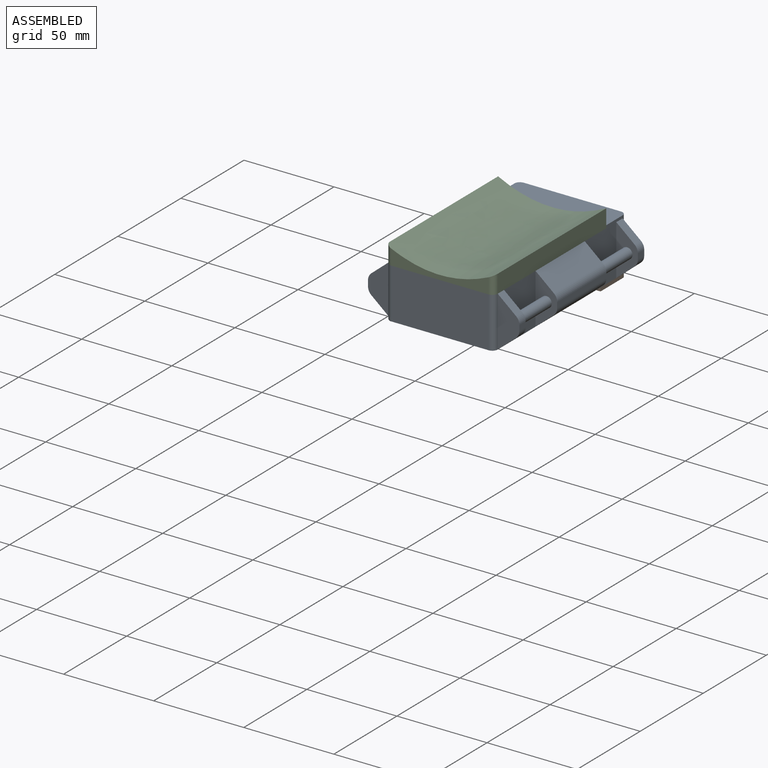
[diagram: assembled view]
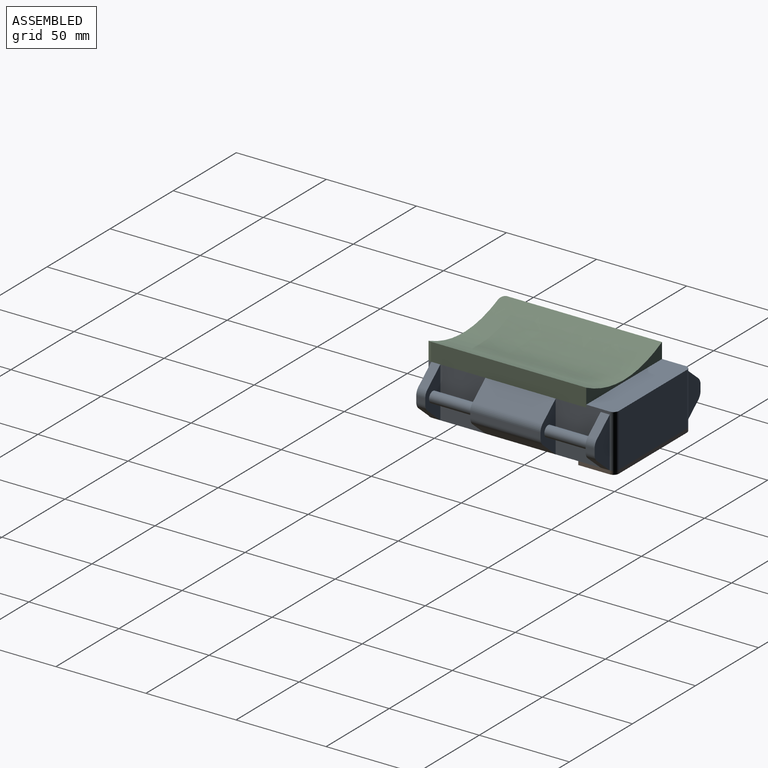
[diagram: assembled view, second angle]
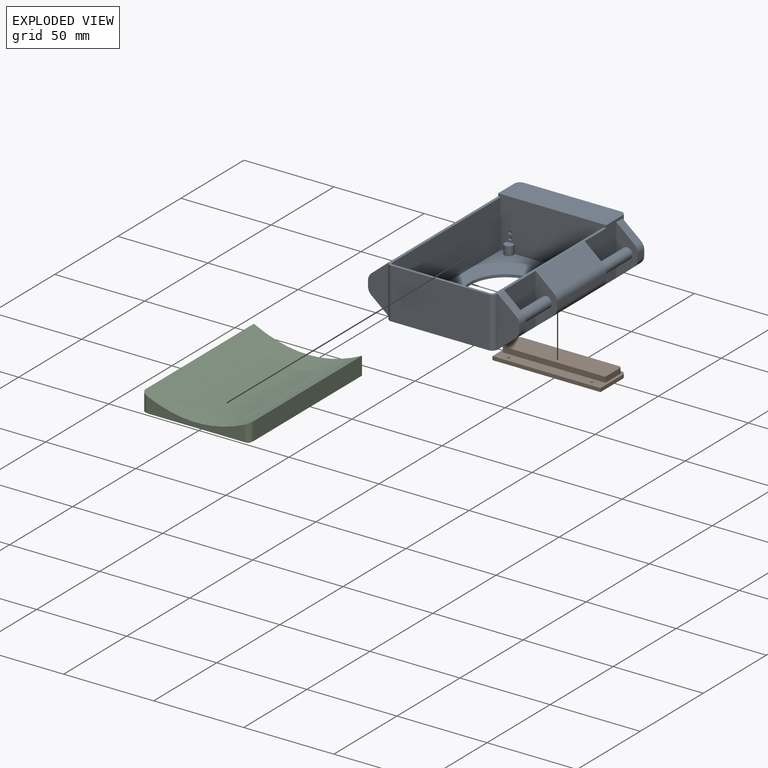
[diagram: exploded view]
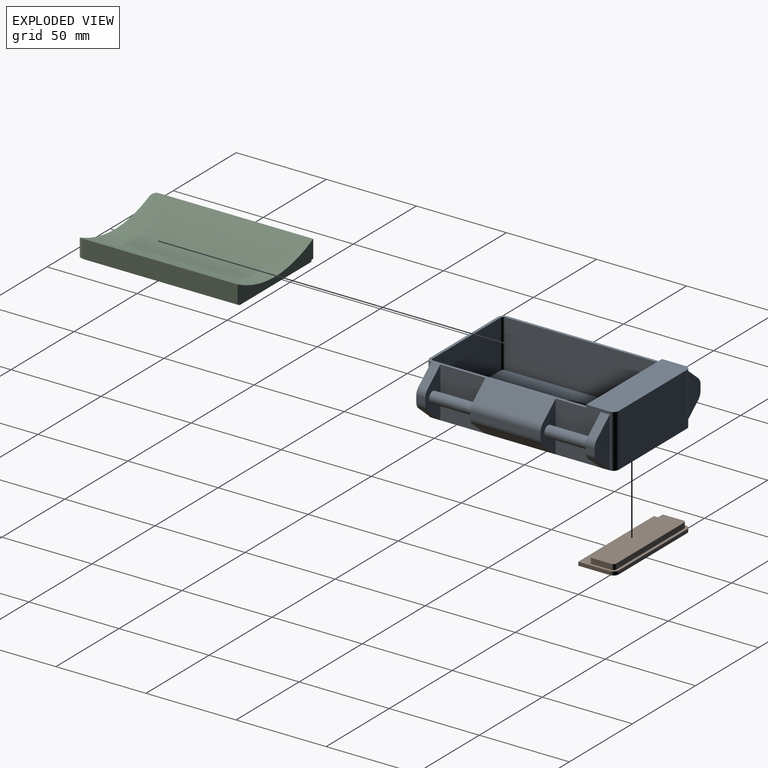
[diagram: exploded view, second angle]
ASSEMBLY  parts=3 mates=2
PART A: 84 faces, bbox 84x105x29.5 mm
  f0: cylinder r=0.75mm len=5mm, axis (0,0,-1), area 23.6mm2, adj f3,f83
  f1: cylinder r=0.75mm len=5mm, axis (0,0,-1), area 23.6mm2, adj f3,f82
  f2: plane 60x28mm, normal (0,-1,0), area 1554.2mm2, adj f4,f5,f6,f7,f8,f11,f74,f75
  f3: plane 105x60mm, normal (0,0,-1), area 4292.1mm2, adj f0,f1,f8,f9,f10,f11,f12,f13
  f4: plane 87.5x57mm, normal (0,0,1), area 3696.2mm2, adj f2,f6,f7,f18,f22,f25,f72,f78
  f5: plane 89x60mm, normal (0,0,1), area 349.6mm2, adj f2,f6,f7,f8,f9,f10,f11,f12
  f6: plane 86x26.5mm, normal (-1,0,0), area 2279mm2, adj f2,f4,f5,f22
  f7: plane 86x26.5mm, normal (1,0,0), area 2279mm2, adj f2,f4,f5,f25
  f8: plane 30x29.5mm, normal (-1,0,0), area 719.5mm2, adj f2,f3,f5,f16,f64,f65,f71,f76
  f9: plane 28x25mm, normal (-1,0,0), area 700mm2, adj f3,f5,f41,f50
  f10: plane 28x25mm, normal (1,0,0), area 700mm2, adj f3,f5,f27,f36
  f11: plane 30x29.5mm, normal (1,0,0), area 719.5mm2, adj f2,f3,f5,f15,f55,f56,f62,f76
  f12: plane 54x28mm, normal (0,-1,0), area 1512mm2, adj f3,f5,f14,f17
  f13: plane 54x29.5mm, normal (0,1,0), area 1593mm2, adj f3,f15,f16,f76
  f14: cylinder r=3mm len=28mm, axis (0,0,1), area 131.9mm2, adj f3,f5,f12,f29
  f15: cylinder r=3mm len=29.5mm, axis (0,0,-1), area 139mm2, adj f3,f11,f13,f57,f76
  f16: cylinder r=3mm len=29.5mm, axis (0,0,1), area 139mm2, adj f3,f8,f13,f66,f76
  f17: cylinder r=3mm len=28mm, axis (0,0,-1), area 131.9mm2, adj f3,f5,f12,f43
  f18: plane 54x26.5mm, normal (0,1,0), area 1431mm2, adj f4,f5,f22,f25
  f19: plane 28x11.5mm, normal (-1,0,0), area 322mm2, adj f3,f23,f73,f77
  f20: plane 54x28mm, normal (0,-1,0), area 1512mm2, adj f3,f23,f24,f77
  f21: plane 28x11.5mm, normal (1,0,0), area 322mm2, adj f3,f24,f73,f77
  f22: cylinder r=1.5mm len=26.5mm, axis (0,0,1), area 62.4mm2, adj f4,f5,f6,f18
  f23: cylinder r=1.5mm len=28mm, axis (0,0,-1), area 66mm2, adj f3,f19,f20,f77
  f24: cylinder r=1.5mm len=28mm, axis (0,0,1), area 66mm2, adj f3,f20,f21,f77
  f25: cylinder r=1.5mm len=26.5mm, axis (0,0,-1), area 62.4mm2, adj f4,f5,f7,f18
  f26: plane 10.21x8.57mm, normal (0.64,0,-0.77), area 66.7mm2, adj f3,f27,f29,f32
  f27: plane 28x12mm, normal (0,1,0), area 185.4mm2, adj f10,f26,f28,f30,f31,f32,f33
  f28: plane 10.21x8.57mm, normal (0.64,0,0.77), area 66.7mm2, adj f5,f27,f29,f31
  f29: plane 28x12mm, normal (0,-1,0), area 213.7mm2, adj f14,f26,f28,f30,f31,f32
  f30: plane 5x3.2mm, normal (1,0,0), area 16mm2, adj f27,f29,f31,f32
  f31: cylinder r=5mm len=5mm, axis (0,1,0), area 21.8mm2, adj f27,f28,f29,f30
  f32: cylinder r=5mm len=5mm, axis (0,1,0), area 21.8mm2, adj f26,f27,f29,f30
  f33: cylinder r=3mm len=25mm, axis (0,-1,0), area 471.2mm2, adj f27,f36
  f34: plane 39x10.21mm, normal (0.64,0,-0.77), area 520mm2, adj f3,f36,f39,f62
  f35: plane 39x10.21mm, normal (0.64,0,0.77), area 520mm2, adj f5,f36,f38,f62
  f36: plane 28x12mm, normal (0,-1,0), area 185.4mm2, adj f10,f33,f34,f35,f37,f38,f39
  f37: plane 39x3.2mm, normal (1,0,0), area 124.7mm2, adj f36,f38,f39,f62
  f38: cylinder r=5mm len=39mm, axis (0,1,0), area 170.2mm2, adj f35,f36,f37,f62
  f39: cylinder r=5mm len=39mm, axis (0,1,0), area 170.2mm2, adj f34,f36,f37,f62
  f40: plane 10.21x8.57mm, normal (-0.64,0,-0.77), area 66.7mm2, adj f3,f41,f43,f46
  f41: plane 28x12mm, normal (0,1,0), area 185.4mm2, adj f9,f40,f42,f44,f45,f46,f47
  f42: plane 10.21x8.57mm, normal (-0.64,0,0.77), area 66.7mm2, adj f5,f41,f43,f45
  f43: plane 28x12mm, normal (0,-1,0), area 213.7mm2, adj f17,f40,f42,f44,f45,f46
  f44: plane 5x3.2mm, normal (-1,0,0), area 16mm2, adj f41,f43,f45,f46
  f45: cylinder r=5mm len=5mm, axis (0,1,0), area 21.8mm2, adj f41,f42,f43,f44
  f46: cylinder r=5mm len=5mm, axis (0,1,0), area 21.8mm2, adj f40,f41,f43,f44
  f47: cylinder r=3mm len=25mm, axis (0,-1,0), area 471.2mm2, adj f41,f50
  f48: plane 39x10.21mm, normal (-0.64,0,-0.77), area 520mm2, adj f3,f50,f53,f71
  f49: plane 39x10.21mm, normal (-0.64,0,0.77), area 520mm2, adj f5,f50,f52,f71
  f50: plane 28x12mm, normal (0,-1,0), area 185.4mm2, adj f9,f47,f48,f49,f51,f52,f53
  f51: plane 39x3.2mm, normal (-1,0,0), area 124.7mm2, adj f50,f52,f53,f71
  f52: cylinder r=5mm len=39mm, axis (0,1,0), area 170.2mm2, adj f49,f50,f51,f71
  f53: cylinder r=5mm len=39mm, axis (0,1,0), area 170.2mm2, adj f48,f50,f51,f71
  f54: plane 10.21x8.57mm, normal (0.64,0,-0.77), area 66.7mm2, adj f3,f55,f57,f60
  f55: plane 28x12mm, normal (0,-1,0), area 185.4mm2, adj f11,f54,f56,f58,f59,f60,f61
  f56: plane 10.21x8.57mm, normal (0.64,0,0.77), area 66.7mm2, adj f11,f55,f57,f59
  f57: plane 28x12mm, normal (0,1,0), area 213.7mm2, adj f15,f54,f56,f58,f59,f60
  f58: plane 5x3.2mm, normal (1,0,0), area 16mm2, adj f55,f57,f59,f60
  f59: cylinder r=5mm len=5mm, axis (0,-1,0), area 21.8mm2, adj f55,f56,f57,f58
  f60: cylinder r=5mm len=5mm, axis (0,-1,0), area 21.8mm2, adj f54,f55,f57,f58
  f61: cylinder r=3mm len=25mm, axis (0,1,0), area 471.2mm2, adj f55,f62
  f62: plane 28x12mm, normal (0,1,0), area 185.4mm2, adj f11,f34,f35,f37,f38,f39,f61
  f63: plane 10.21x8.57mm, normal (-0.64,0,-0.77), area 66.7mm2, adj f3,f64,f66,f69
  f64: plane 28x12mm, normal (0,-1,0), area 185.4mm2, adj f8,f63,f65,f67,f68,f69,f70
  f65: plane 10.21x8.57mm, normal (-0.64,0,0.77), area 66.7mm2, adj f8,f64,f66,f68
  f66: plane 28x12mm, normal (0,1,0), area 213.7mm2, adj f16,f63,f65,f67,f68,f69
  f67: plane 5x3.2mm, normal (-1,0,0), area 16mm2, adj f64,f66,f68,f69
  f68: cylinder r=5mm len=5mm, axis (0,-1,0), area 21.8mm2, adj f64,f65,f66,f67
  f69: cylinder r=5mm len=5mm, axis (0,-1,0), area 21.8mm2, adj f63,f64,f66,f67
  f70: cylinder r=3mm len=25mm, axis (0,1,0), area 471.2mm2, adj f64,f71
  f71: plane 28x12mm, normal (0,1,0), area 185.4mm2, adj f8,f48,f49,f51,f52,f53,f70
  f72: cylinder r=20mm len=40mm, axis (0,0,-1), area 188.5mm2, adj f3,f4
  f73: plane 57x28mm, normal (0,1,0), area 1589.7mm2, adj f3,f19,f21,f74,f75,f77
  f74: cylinder r=1mm len=2mm, axis (0,-1,0), area 9.4mm2, adj f2,f73
  f75: cylinder r=1mm len=2mm, axis (0,-1,0), area 9.4mm2, adj f2,f73
  f76: plane 60x16mm, normal (0,0,1), area 956.1mm2, adj f2,f8,f11,f13,f15,f16
  f77: plane 57x13mm, normal (0,0,-1), area 740mm2, adj f19,f20,f21,f23,f24,f73
  f78: cylinder r=2.5mm len=5mm, axis (0,0,-1), area 55.4mm2, adj f2,f4,f79
  f79: plane 5x4mm, normal (0,0,1), area 16.8mm2, adj f2,f78
  f80: cylinder r=2.5mm len=5mm, axis (0,0,-1), area 55.4mm2, adj f2,f4,f81
  f81: plane 5x4mm, normal (0,0,1), area 16.8mm2, adj f2,f80
  f82: plane 1.5x1.5mm, normal (0,0,-1), area 1.8mm2, adj f1
  f83: plane 1.5x1.5mm, normal (0,0,-1), area 1.8mm2, adj f0
PART B: 17 faces, bbox 60x20.5x5 mm
  f0: plane 60x20.5mm, normal (0,0,-1), area 1222.6mm2, adj f2,f3,f4,f5,f6,f7,f15,f16
  f1: plane 60x20.5mm, normal (0,0,1), area 482.6mm2, adj f2,f3,f4,f5,f6,f7,f8,f9
  f2: plane 60x2mm, normal (0,-1,0), area 120mm2, adj f0,f1,f3,f7
  f3: plane 17.5x2mm, normal (-1,0,0), area 35mm2, adj f0,f1,f2,f4
  f4: cylinder r=3mm len=3mm, axis (0,0,1), area 9.4mm2, adj f0,f1,f3,f5
  f5: plane 54x2mm, normal (0,1,0), area 108mm2, adj f0,f1,f4,f6
  f6: cylinder r=3mm len=3mm, axis (0,0,1), area 9.4mm2, adj f0,f1,f5,f7
  f7: plane 17.5x2mm, normal (1,0,0), area 35mm2, adj f0,f1,f2,f6
  f8: plane 11.5x3mm, normal (-1,0,0), area 34.5mm2, adj f1,f9,f13,f14
  f9: plane 57x3mm, normal (0,-1,0), area 171mm2, adj f1,f8,f10,f14
  f10: plane 11.5x3mm, normal (1,0,0), area 34.5mm2, adj f1,f9,f11,f14
  f11: cylinder r=1.5mm len=3mm, axis (0,0,-1), area 7.1mm2, adj f1,f10,f12,f14
  f12: plane 54x3mm, normal (0,1,0), area 162mm2, adj f1,f11,f13,f14
  f13: cylinder r=1.5mm len=3mm, axis (0,0,-1), area 7.1mm2, adj f1,f8,f12,f14
  f14: plane 57x13mm, normal (0,0,1), area 740mm2, adj f8,f9,f10,f11,f12,f13
  f15: cylinder r=0.75mm len=2mm, axis (0,0,1), area 9.4mm2, adj f0,f1
  f16: cylinder r=0.75mm len=2mm, axis (0,0,1), area 9.4mm2, adj f0,f1
PART C: 14 faces, bbox 60x89x11 mm
  f0: plane 89x60mm, normal (0,0,-1), area 349.6mm2, adj f1,f2,f3,f4,f5,f6,f8,f9
  f1: plane 60x11mm, normal (0,1,0), area 357mm2, adj f0,f5,f6,f7,f8,f9,f13
  f2: cylinder r=3mm len=10mm, axis (0,0,1), area 44.6mm2, adj f0,f4,f5,f7
  f3: cylinder r=3mm len=10mm, axis (0,0,-1), area 44.6mm2, adj f0,f4,f6,f7
  f4: plane 58.56x10mm, normal (0,-1,0), area 244.4mm2, adj f0,f2,f3,f7
  f5: plane 86x10mm, normal (1,0,0), area 860mm2, adj f0,f1,f2,f7
  f6: plane 86x10mm, normal (-1,0,0), area 860mm2, adj f0,f1,f3,f7
  f7: extruded ~89x60mm, area 5550.5mm2, adj f1,f2,f3,f4,f5,f6
  f8: plane 86x1mm, normal (-1,0,0), area 86mm2, adj f0,f1,f12,f13
  f9: plane 86x1mm, normal (1,0,0), area 86mm2, adj f0,f1,f10,f13
  f10: cylinder r=1.5mm len=1.5mm, axis (0,0,1), area 2.4mm2, adj f0,f9,f11,f13
  f11: plane 54x1mm, normal (0,-1,0), area 54mm2, adj f0,f10,f12,f13
  f12: cylinder r=1.5mm len=1.5mm, axis (0,0,1), area 2.4mm2, adj f0,f8,f11,f13
  f13: plane 87.5x57mm, normal (0,0,-1), area 4986.5mm2, adj f1,f8,f9,f10,f11,f12
PLACE A t=(-1.46,2.88,-10.17)mm
PLACE B t=(-1.46,2.88,-10.17)mm
PLACE C t=(-1.46,-5.12,17.83)mm
MATE fastened C.f4 <-> A.f12  axis (0,-1,0) through (-1.46,-49.62,17.83)mm
MATE fastened B.f1 <-> A.f3  axis (0,0,1) through (-1.46,40.88,-10.17)mm
